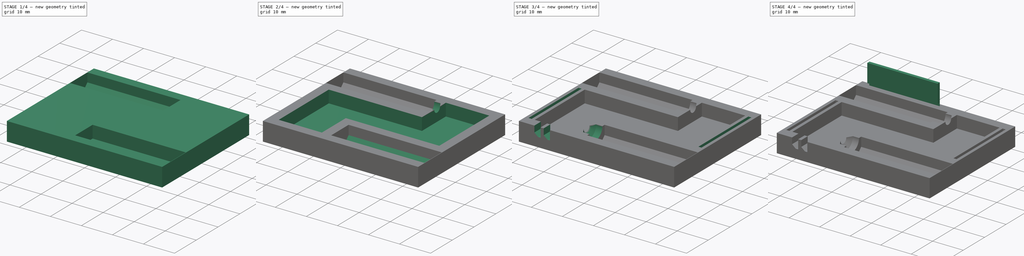
[diagram: build sequence overview — one tinted view per stage of 4, left to right]
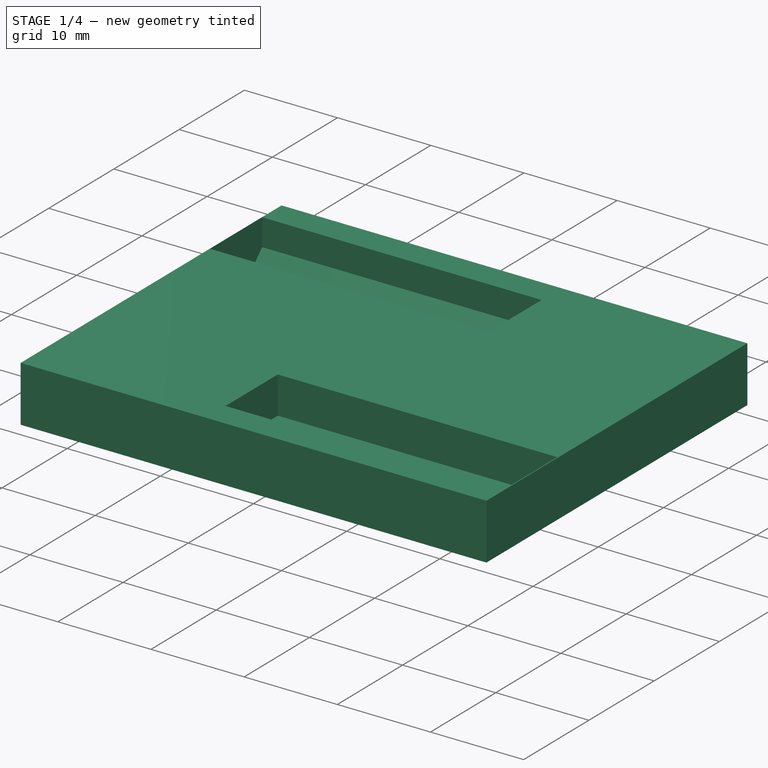
[diagram: stage 1 of 4 — iso view after this stage's code; geometry added in this stage tinted green]
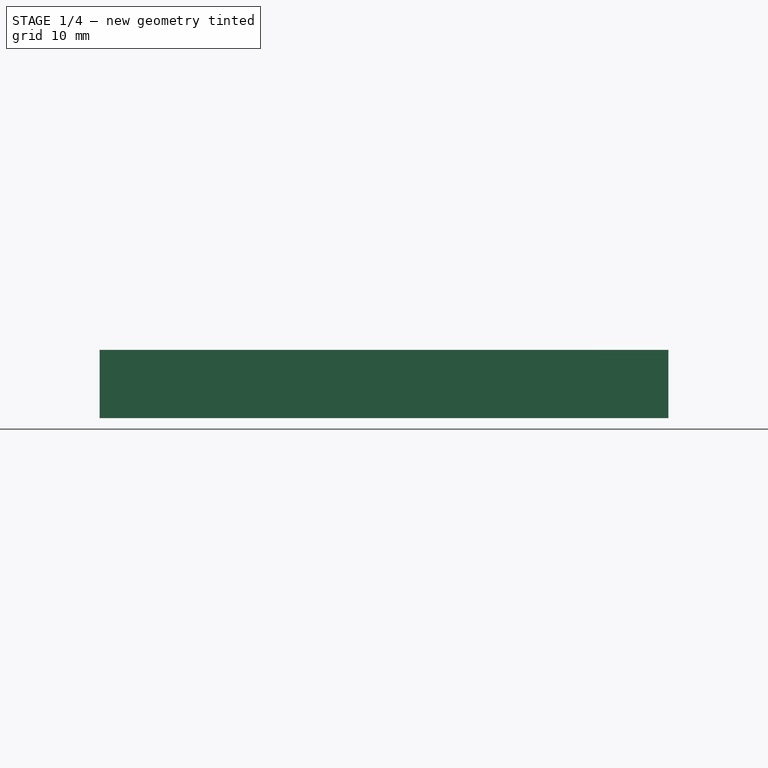
[diagram: stage 1 of 4 — front view after this stage's code; geometry added in this stage tinted green]
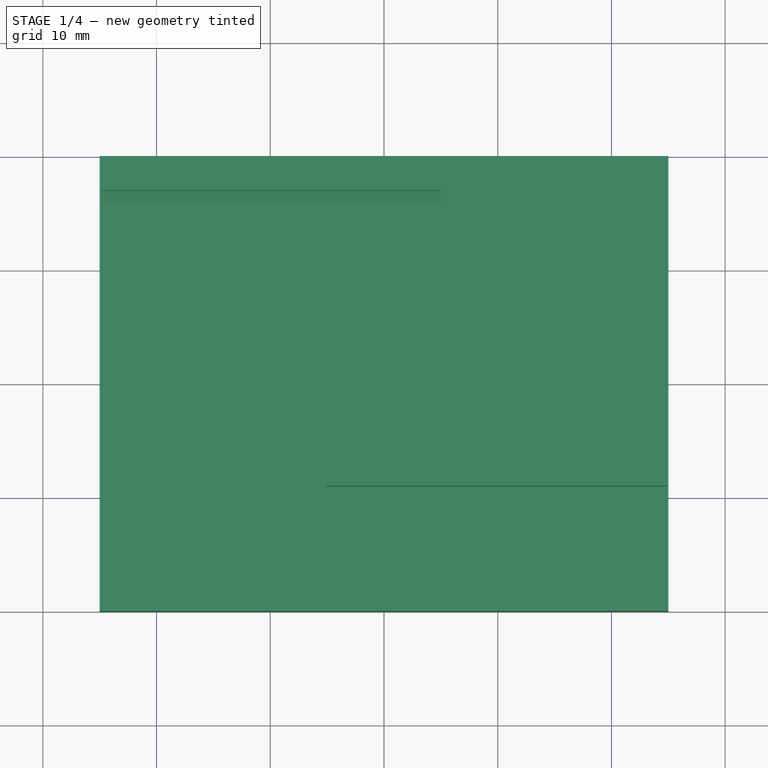
[diagram: stage 1 of 4 — top view after this stage's code; geometry added in this stage tinted green]
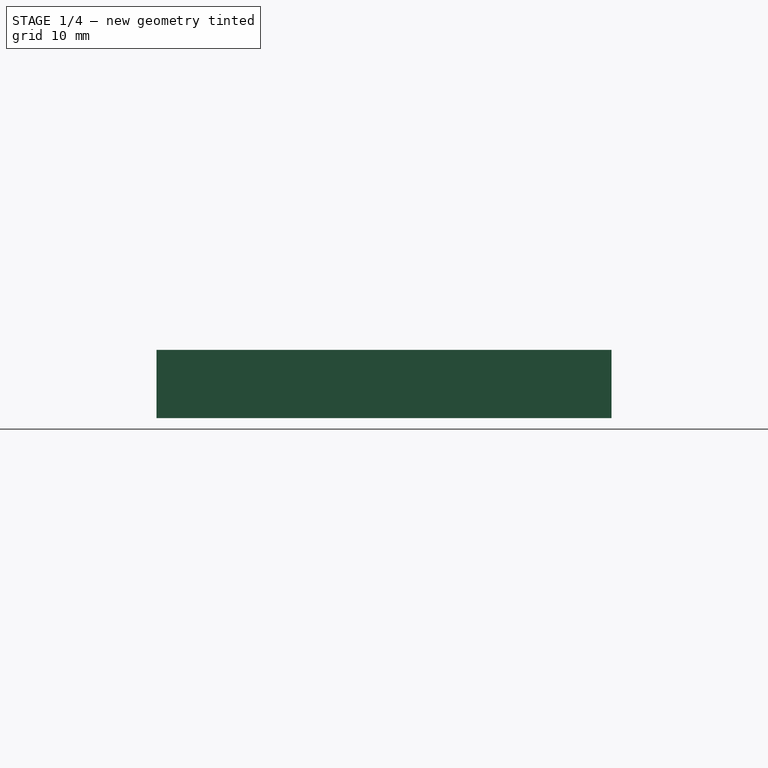
[diagram: stage 1 of 4 — right view after this stage's code; geometry added in this stage tinted green]
FCSTD DOCUMENT  (FreeCAD 0.19R)
Label: connector_socket
License: All rights reserved
LicenseURL: http://en.wikipedia.org/wiki/All_rights_reserved
objects: Sketcher::SketchObject×10, PartDesign::Pocket×6, PartDesign::Chamfer×3, PartDesign::Pad×2, PartDesign::Hole×2, PartDesign::Body×1
note: 37 computed .brp shape members not serialized (recipe doc carries the construction recipe); baked Part::Feature solids carry a one-line shape summary decoded from their .brp

FEATURE [Sketcher::SketchObject] Sketch  label="base"
  FullyConstrained = true
  MapMode = 5
  Support = -> [XY_Plane]
  sketch-geometry (4):
    g0: LineSegment StartX=-25 StartY=20 StartZ=0 EndX=25 EndY=20 EndZ=0
    g1: LineSegment StartX=25 StartY=20 StartZ=0 EndX=25 EndY=-20 EndZ=0
    g2: LineSegment StartX=25 StartY=-20 StartZ=0 EndX=-25 EndY=-20 EndZ=0
    g3: LineSegment StartX=-25 StartY=-20 StartZ=0 EndX=-25 EndY=20 EndZ=0
  constraints (12):
    c: Coincident(g0,g1)
    c: Coincident(g1,g2)
    c: Coincident(g2,g3)
    c: Coincident(g3,g0)
    c: Horizontal(g0)
    c: Horizontal(g2)
    c: Vertical(g1)
    c: Vertical(g3)
    c: DistanceY(g3,g3) = 40
    c: DistanceX(g0,g0) = 50
    c: Distance(g-1,g0) = 20
    c: Distance(g-1,g3) = 25
FEATURE [PartDesign::Pad] Pad
  Direction = (1,1,1)
  Length = 6
  Length2 = 100
  Profile = -> Sketch
  Type = 0
FEATURE [Sketcher::SketchObject] Sketch001  label="male_female_pin_holder"
  ExternalGeometry = -> [Pad]
  FullyConstrained = true
  MapMode = 5
  Placement = pos=(0,0,6) rot=(0,0,1;0rad)
  Support = -> [Pad]
  sketch-geometry (8):
    g0: LineSegment StartX=-24.99 StartY=17 StartZ=0 EndX=5.01 EndY=17 EndZ=0
    g1: LineSegment StartX=5.01 StartY=17 StartZ=0 EndX=5.01 EndY=9 EndZ=0
    g2: LineSegment StartX=5.01 StartY=9 StartZ=0 EndX=-24.99 EndY=9 EndZ=0
    g3: LineSegment StartX=-24.99 StartY=9 StartZ=0 EndX=-24.99 EndY=17 EndZ=0
    g4: LineSegment StartX=24.9 StartY=-9 StartZ=0 EndX=-5.1 EndY=-9 EndZ=0
    g5: LineSegment StartX=-5.1 StartY=-9 StartZ=0 EndX=-5.1 EndY=-17 EndZ=0
    g6: LineSegment StartX=-5.1 StartY=-17 StartZ=0 EndX=24.9 EndY=-17 EndZ=0
    g7: LineSegment StartX=24.9 StartY=-17 StartZ=0 EndX=24.9 EndY=-9 EndZ=0
  constraints (24):
    c: Coincident(g0,g1)
    c: Coincident(g1,g2)
    c: Coincident(g2,g3)
    c: Coincident(g3,g0)
    c: Horizontal(g0)
    c: Horizontal(g2)
    c: Vertical(g1)
    c: Vertical(g3)
    c: DistanceX(g0,g0) = 30
    c: DistanceY(g1,g1) = 8
    c: Distance(g-4,g0) = 3
    c: Coincident(g4,g5)
    c: Coincident(g5,g6)
    c: Coincident(g6,g7)
    c: Coincident(g7,g4)
    c: Horizontal(g4)
    c: Horizontal(g6)
    c: Vertical(g5)
    c: Vertical(g7)
    c: DistanceX(g4,g4) = 30
    c: DistanceY(g5,g5) = 8
    c: Distance(g-6,g6) = 3
    c: Distance(g-6,g7) = 0.1
    c: Distance(g-4,g3) = 0.01
FEATURE [PartDesign::Pocket] Pocket
  BaseFeature = -> Pad
  Length = 4
  Length2 = 100
  Profile = -> Sketch001
  Type = 0
FEATURE [PartDesign::Chamfer] Chamfer
  Angle = 42
  Base = -> Pocket [Edge31]
  BaseFeature = -> Pocket
  ChamferType = 0
  FlipDirection = false
  Refine = true
  Size = 1.1
  Size2 = 1
  SupportTransform = false
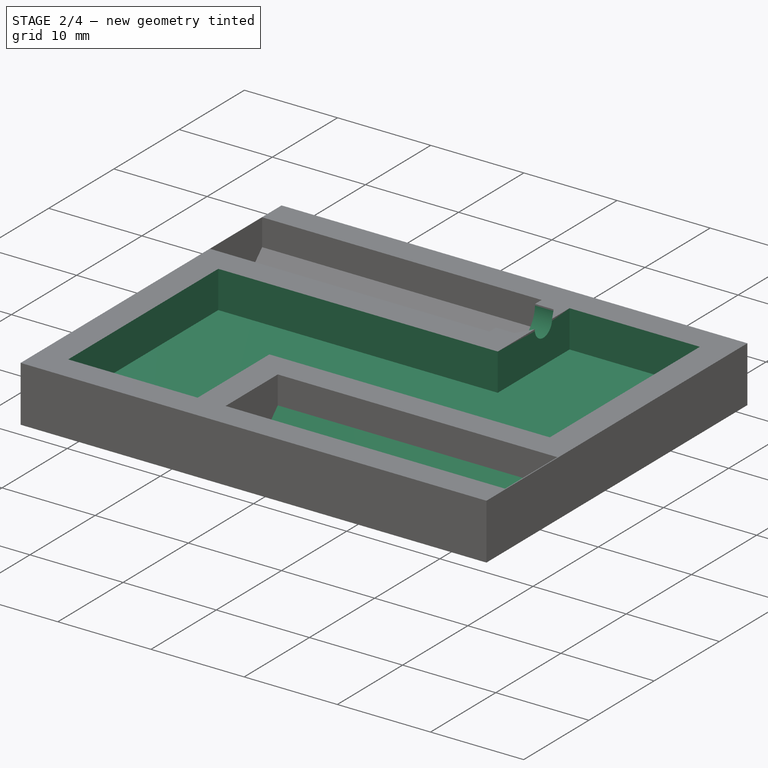
[diagram: stage 2 of 4 — iso view after this stage's code; geometry added in this stage tinted green]
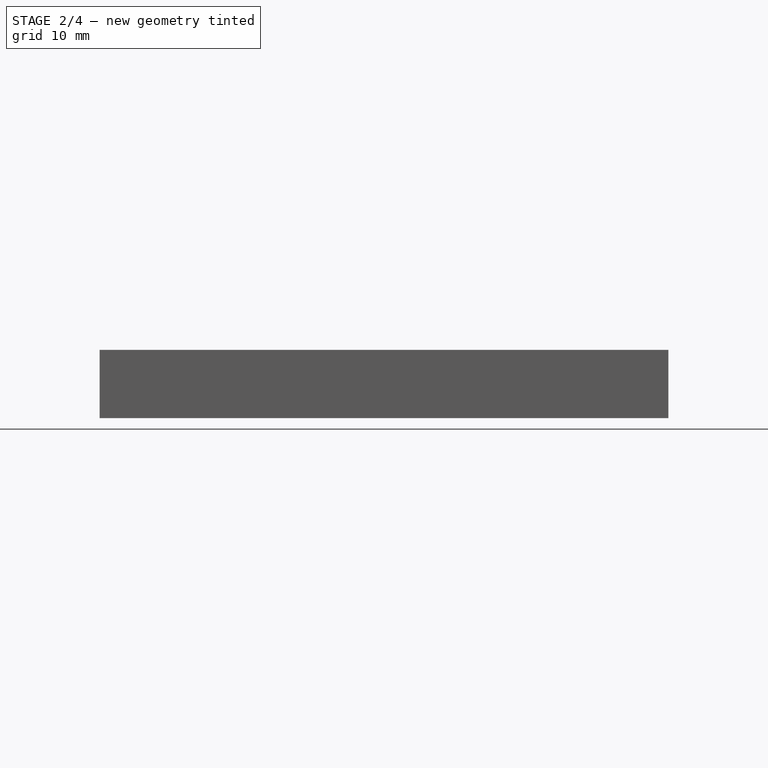
[diagram: stage 2 of 4 — front view after this stage's code; geometry added in this stage tinted green]
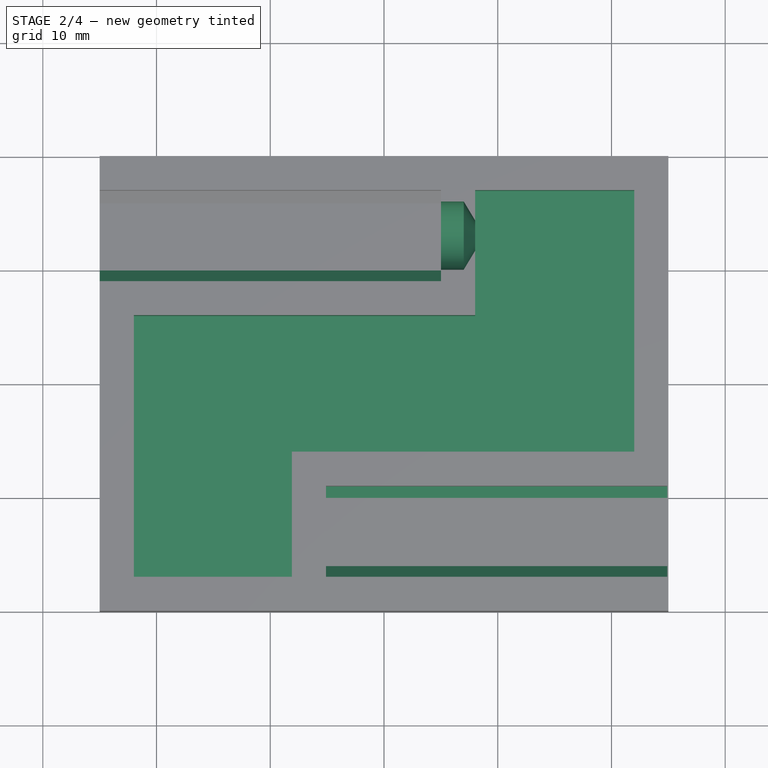
[diagram: stage 2 of 4 — top view after this stage's code; geometry added in this stage tinted green]
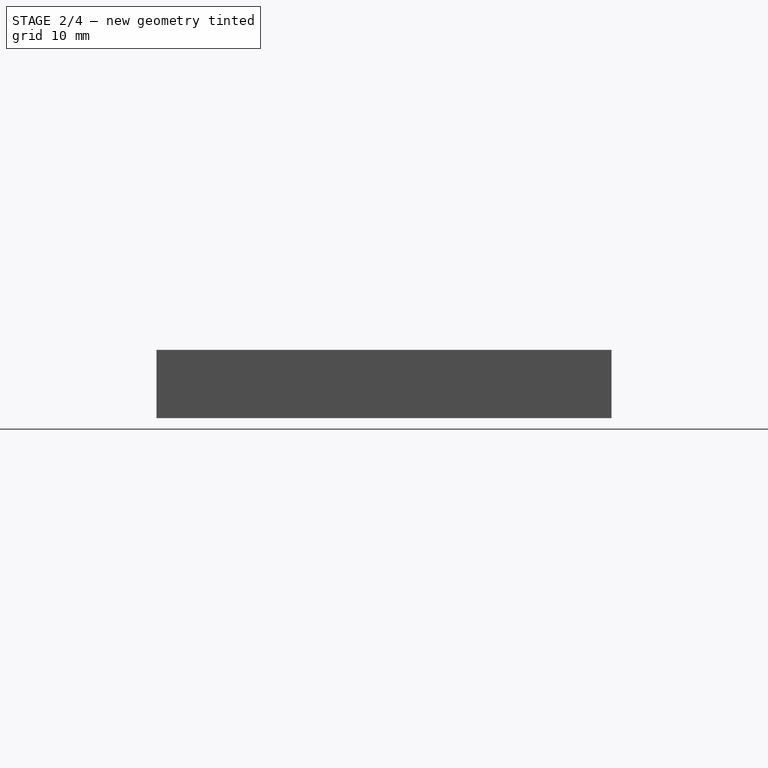
[diagram: stage 2 of 4 — right view after this stage's code; geometry added in this stage tinted green]
FEATURE [PartDesign::Chamfer] Chamfer001
  Angle = 45
  Base = -> Chamfer [Edge23,Edge39,Edge36]
  BaseFeature = -> Chamfer
  ChamferType = 0
  FlipDirection = false
  Size = 1
  Size2 = 1
  SupportTransform = false
FEATURE [Sketcher::SketchObject] Sketch002  label="wire_bed"
  ExternalGeometry = -> [Chamfer001]
  FullyConstrained = true
  MapMode = 5
  Placement = pos=(0,0,6) rot=(0,0,1;0rad)
  Support = -> [Chamfer001]
  sketch-geometry (8):
    g0: LineSegment StartX=8.01 StartY=17 StartZ=0 EndX=8.01 EndY=6 EndZ=0
    g1: LineSegment StartX=8.01 StartY=6 StartZ=0 EndX=-21.99 EndY=6 EndZ=0
    g2: LineSegment StartX=-21.99 StartY=6 StartZ=0 EndX=-21.99 EndY=-17 EndZ=0
    g3: LineSegment StartX=-21.99 StartY=-17 StartZ=0 EndX=-8.1 EndY=-17 EndZ=0
    g4: LineSegment StartX=-8.1 StartY=-17 StartZ=0 EndX=-8.1 EndY=-6 EndZ=0
    g5: LineSegment StartX=-8.1 StartY=-6 StartZ=0 EndX=22 EndY=-6 EndZ=0
    g6: LineSegment StartX=22 StartY=-6 StartZ=0 EndX=22 EndY=17 EndZ=0
    g7: LineSegment StartX=22 StartY=17 StartZ=0 EndX=8.01 EndY=17 EndZ=0
  constraints (24):
    c: Vertical(g0)
    c: Coincident(g0,g1)
    c: Horizontal(g1)
    c: Coincident(g1,g2)
    c: Vertical(g2)
    c: Coincident(g2,g3)
    c: Coincident(g3,g4)
    c: Coincident(g4,g5)
    c: Horizontal(g5)
    c: Coincident(g5,g6)
    c: Coincident(g6,g7)
    c: Coincident(g7,g0)
    c: Distance(g-12,g7) = 3
    c: Parallel(g7,g-5)
    c: Distance(g-4,g0) = 3
    c: Distance(g-6,g1) = 3
    c: Distance(g-6,g2) = 3
    c: Parallel(g3,g-8)
    c: Distance(g-8,g3) = 3
    c: Parallel(g4,g-9)
    c: Distance(g-11,g4) = 3
    c: Distance(g-11,g5) = 3
    c: Parallel(g6,g-12)
    c: Distance(g-12,g6) = 3
FEATURE [PartDesign::Pocket] Pocket001
  BaseFeature = -> Chamfer001
  Length = 4
  Length2 = 100
  Profile = -> Sketch002
  Type = 0
FEATURE [Sketcher::SketchObject] Sketch003  label="header_hole1"
  ExternalGeometry = -> [Pocket001]
  FullyConstrained = true
  MapMode = 5
  Placement = pos=(5.01,0,0) rot=(0.57735,-0.57735,-0.57735;2.0944rad)
  Support = -> [Pocket001]
  sketch-geometry (1):
    g0: Circle CenterX=-13 CenterY=6 CenterZ=0 NormalX=0 NormalY=0 NormalZ=1 AngleXU=0 Radius=3
  constraints (4):
    c: PointOnObject(g0,g-3)
    c: Radius(g0) = 3
    c: Distance(g0,g-5) = 4
    c: Distance(g0,g-4) = 4
FEATURE [PartDesign::Hole] Hole
  BaseFeature = -> Pocket001
  Depth = 2
  DepthType = 0
  Diameter = 6
  DrillForDepth = false
  DrillPoint = 1
  DrillPointAngle = 118
  HoleCutCountersinkAngle = 90
  HoleCutCustomValues = false
  HoleCutDepth = 0
  HoleCutDiameter = 6.1
  HoleCutType = 0
  ModelActualThread = false
  Profile = -> Sketch003
  Tapered = false
  TaperedAngle = 90
  ThreadAngle = 0
  ThreadClass = 0
  ThreadCutOffInner = 0
  ThreadCutOffOuter = 0
  ThreadDirection = 0
  ThreadFit = 0
  ThreadPitch = 0
  ThreadSize = 0
  ThreadType = 0
  Threaded = false
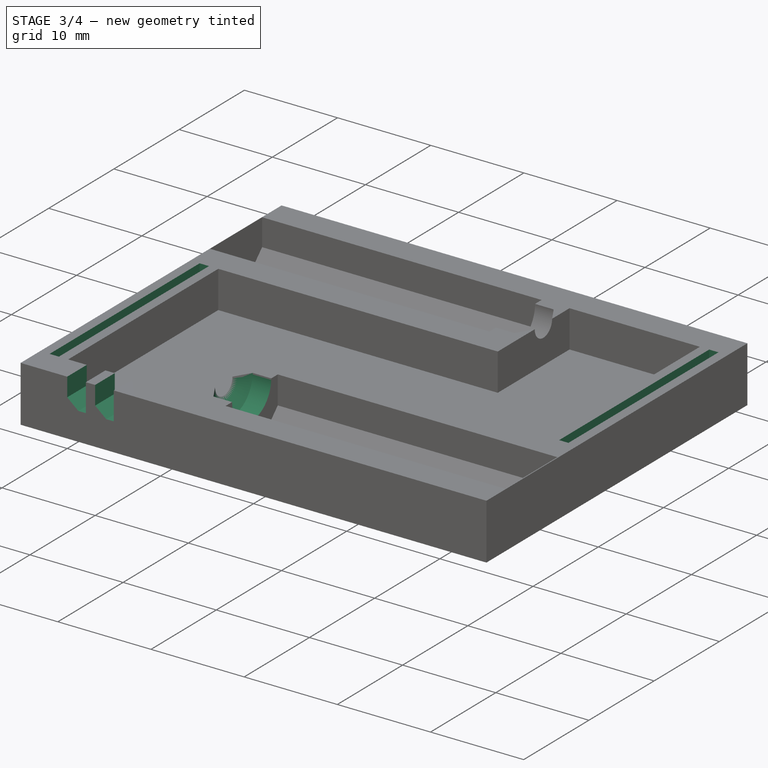
[diagram: stage 3 of 4 — iso view after this stage's code; geometry added in this stage tinted green]
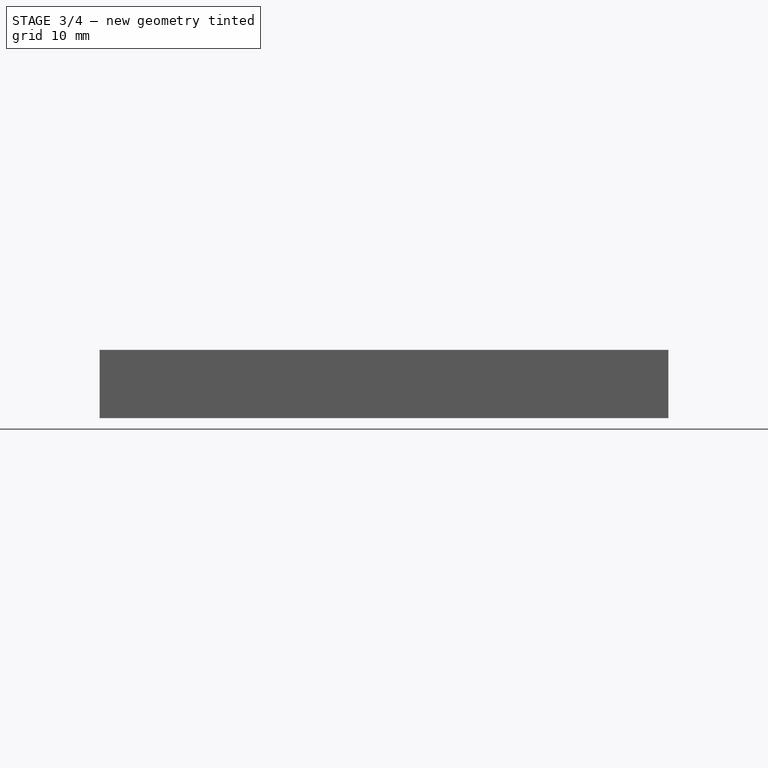
[diagram: stage 3 of 4 — front view after this stage's code; geometry added in this stage tinted green]
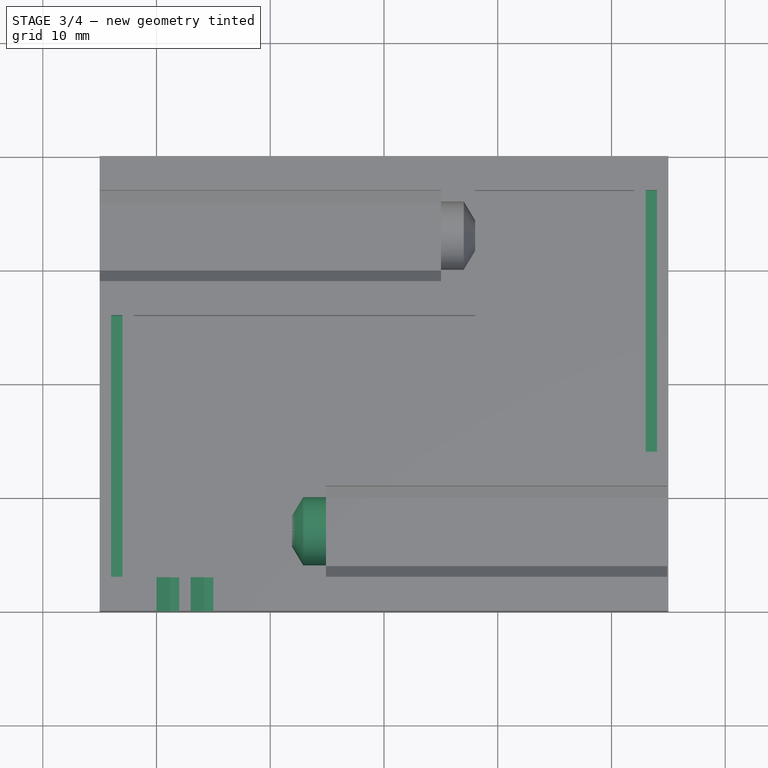
[diagram: stage 3 of 4 — top view after this stage's code; geometry added in this stage tinted green]
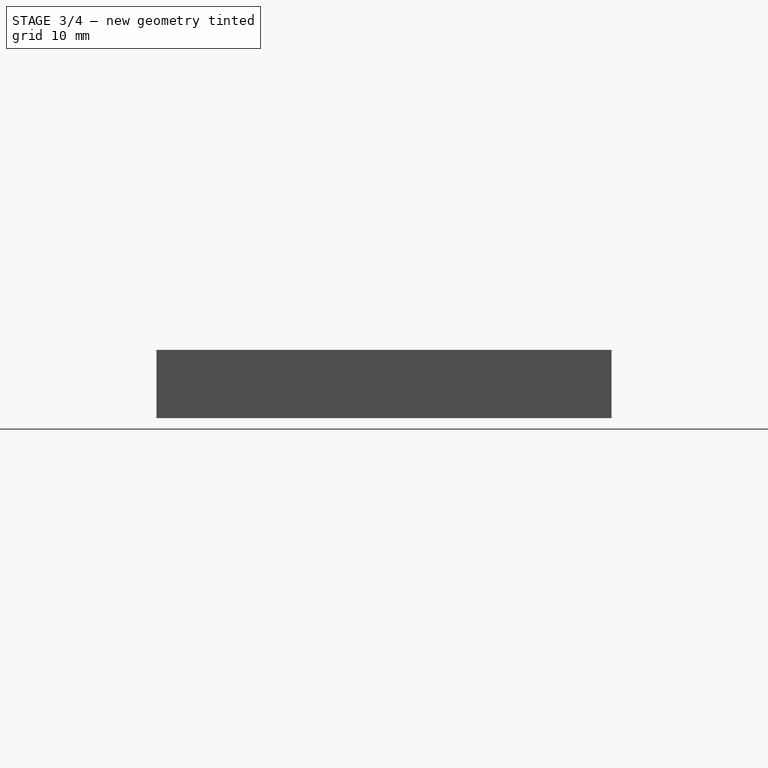
[diagram: stage 3 of 4 — right view after this stage's code; geometry added in this stage tinted green]
FEATURE [Sketcher::SketchObject] Sketch004  label="headerhole2"
  ExternalGeometry = -> [Hole]
  FullyConstrained = true
  MapMode = 5
  Placement = pos=(-5.1,0,0) rot=(0.57735,0.57735,0.57735;2.0944rad)
  Support = -> [Hole]
  sketch-geometry (1):
    g0: Circle CenterX=-13 CenterY=6 CenterZ=0 NormalX=0 NormalY=0 NormalZ=1 AngleXU=0 Radius=3
  constraints (3):
    c: PointOnObject(g0,g-3)
    c: Radius(g0) = 3
    c: Distance(g0,g-9) = 4
FEATURE [PartDesign::Hole] Hole001
  BaseFeature = -> Hole
  Depth = 2
  DepthType = 0
  Diameter = 6
  DrillForDepth = false
  DrillPoint = 1
  DrillPointAngle = 118
  HoleCutCountersinkAngle = 90
  HoleCutCustomValues = false
  HoleCutDepth = 0
  HoleCutDiameter = 6.1
  HoleCutType = 0
  ModelActualThread = false
  Profile = -> Sketch004
  Tapered = false
  TaperedAngle = 90
  ThreadAngle = 0
  ThreadClass = 0
  ThreadCutOffInner = 0
  ThreadCutOffOuter = 0
  ThreadDirection = 0
  ThreadFit = 0
  ThreadPitch = 0
  ThreadSize = 0
  ThreadType = 0
  Threaded = false
FEATURE [Sketcher::SketchObject] Sketch005
  ExternalGeometry = -> [Hole001]
  FullyConstrained = true
  MapMode = 5
  Placement = pos=(0,0,6) rot=(0,0,1;0rad)
  Support = -> [Hole001]
  sketch-geometry (8):
    g0: LineSegment StartX=-20 StartY=-17 StartZ=0 EndX=-18 EndY=-17 EndZ=0
    g1: LineSegment StartX=-18 StartY=-17 StartZ=0 EndX=-18 EndY=-20 EndZ=0
    g2: LineSegment StartX=-18 StartY=-20 StartZ=0 EndX=-20 EndY=-20 EndZ=0
    g3: LineSegment StartX=-20 StartY=-20 StartZ=0 EndX=-20 EndY=-17 EndZ=0
    g4: LineSegment StartX=-17 StartY=-17 StartZ=0 EndX=-15 EndY=-17 EndZ=0
    g5: LineSegment StartX=-15 StartY=-17 StartZ=0 EndX=-15 EndY=-20 EndZ=0
    g6: LineSegment StartX=-15 StartY=-20 StartZ=0 EndX=-17 EndY=-20 EndZ=0
    g7: LineSegment StartX=-17 StartY=-20 StartZ=0 EndX=-17 EndY=-17 EndZ=0
  constraints (24):
    c: Coincident(g0,g1)
    c: Coincident(g1,g2)
    c: Coincident(g2,g3)
    c: Coincident(g3,g0)
    c: Horizontal(g0)
    c: Horizontal(g2)
    c: Vertical(g1)
    c: Vertical(g3)
    c: PointOnObject(g0,g-4)
    c: PointOnObject(g1,g-5)
    c: Coincident(g4,g5)
    c: Coincident(g5,g6)
    c: Coincident(g6,g7)
    c: Coincident(g7,g4)
    c: Horizontal(g4)
    c: Horizontal(g6)
    c: Vertical(g5)
    c: Vertical(g7)
    c: PointOnObject(g4,g-4)
    c: PointOnObject(g5,g-5)
    c: DistanceX(g0,g0) = 2
    c: DistanceX(g4,g4) = 2
    c: Distance(g-5,g3) = 5
    c: Distance(g0,g7) = 3
FEATURE [PartDesign::Pocket] Pocket002
  BaseFeature = -> Hole001
  Length = 3
  Length2 = 100
  Profile = -> Sketch005
  Type = 0
FEATURE [PartDesign::Chamfer] Chamfer002
  Angle = 50
  Base = -> Pocket002 [Edge65,Edge117]
  BaseFeature = -> Pocket002
  ChamferType = 2
  FlipDirection = false
  Size = 1
  Size2 = 1
  SupportTransform = false
FEATURE [Sketcher::SketchObject] Sketch006  label="clamping_hole"
  ExternalGeometry = -> [Chamfer002]
  FullyConstrained = true
  MapMode = 5
  Placement = pos=(0,0,6) rot=(0,0,1;0rad)
  Support = -> [Chamfer002]
  sketch-geometry (8):
    g0: LineSegment StartX=-23.99 StartY=6 StartZ=0 EndX=-22.99 EndY=6 EndZ=0
    g1: LineSegment StartX=-22.99 StartY=6 StartZ=0 EndX=-22.99 EndY=-17 EndZ=0
    g2: LineSegment StartX=-22.99 StartY=-17 StartZ=0 EndX=-23.99 EndY=-17 EndZ=0
    g3: LineSegment StartX=-23.99 StartY=-17 StartZ=0 EndX=-23.99 EndY=6 EndZ=0
    g4: LineSegment StartX=23 StartY=17 StartZ=0 EndX=24 EndY=17 EndZ=0
    g5: LineSegment StartX=24 StartY=17 StartZ=0 EndX=24 EndY=-6 EndZ=0
    g6: LineSegment StartX=24 StartY=-6 StartZ=0 EndX=23 EndY=-6 EndZ=0
    g7: LineSegment StartX=23 StartY=-6 StartZ=0 EndX=23 EndY=17 EndZ=0
  constraints (24):
    c: Coincident(g0,g1)
    c: Coincident(g1,g2)
    c: Coincident(g2,g3)
    c: Coincident(g3,g0)
    c: Horizontal(g0)
    c: Horizontal(g2)
    c: Vertical(g1)
    c: Vertical(g3)
    c: DistanceX(g0,g0) = 1
    c: DistanceX(g0,g-5) = 1
    c: DistanceY(g3,g3) = 23
    c: Distance(g-13,g0) = 3
    c: Coincident(g4,g5)
    c: Coincident(g5,g6)
    c: Coincident(g6,g7)
    c: Coincident(g7,g4)
    c: Horizontal(g4)
    c: Horizontal(g6)
    c: Vertical(g5)
    c: Vertical(g7)
    c: Distance(g-7,g4) = 3
    c: DistanceX(g4,g4) = 1
    c: Distance(g-7,g5) = 1
    c: DistanceY(g7,g7) = 23
FEATURE [PartDesign::Pocket] Pocket003
  BaseFeature = -> Chamfer002
  Length = 3
  Length2 = 100
  Profile = -> Sketch006
  Type = 0
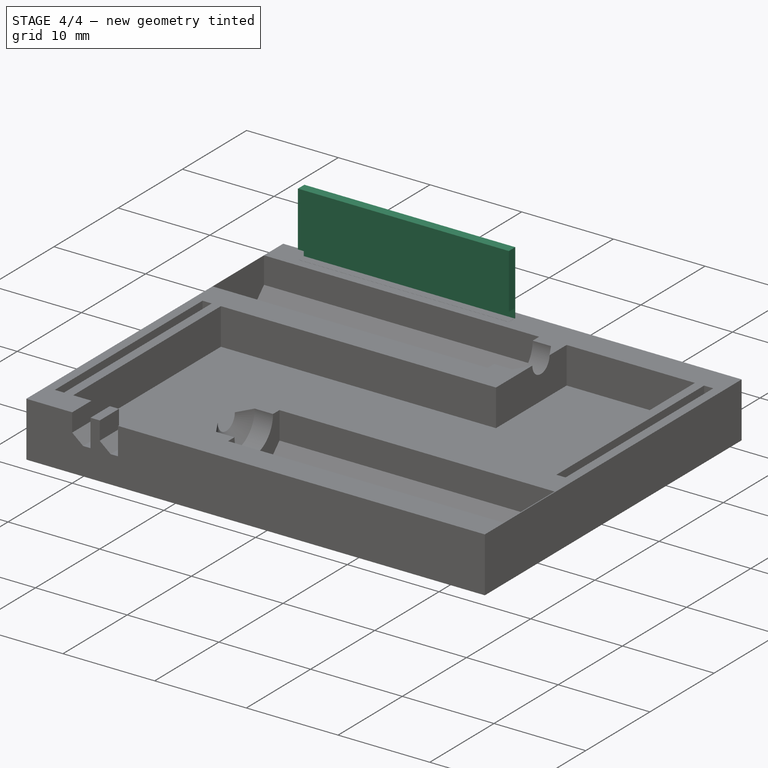
[diagram: stage 4 of 4 — iso view after this stage's code; geometry added in this stage tinted green]
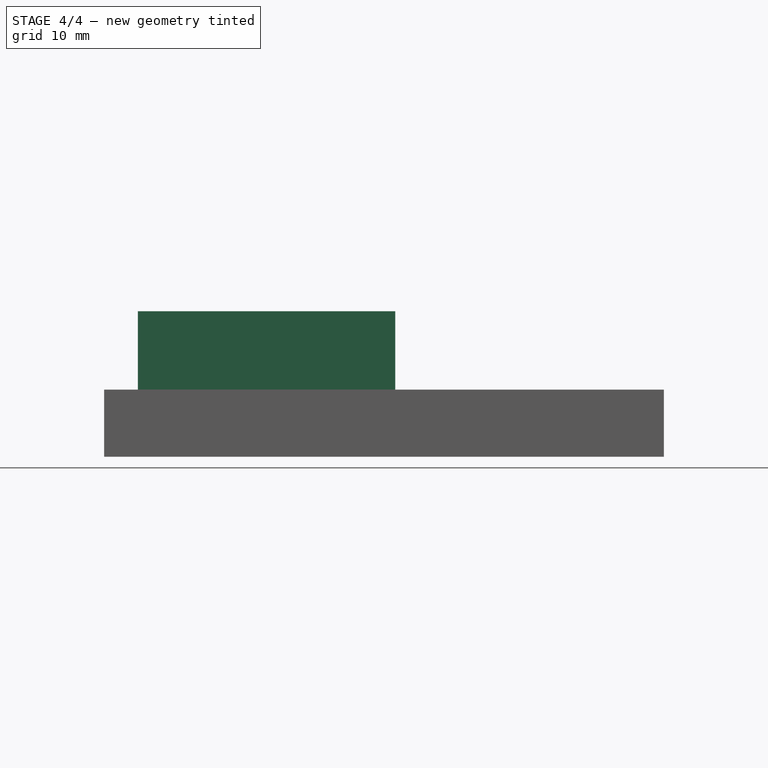
[diagram: stage 4 of 4 — front view after this stage's code; geometry added in this stage tinted green]
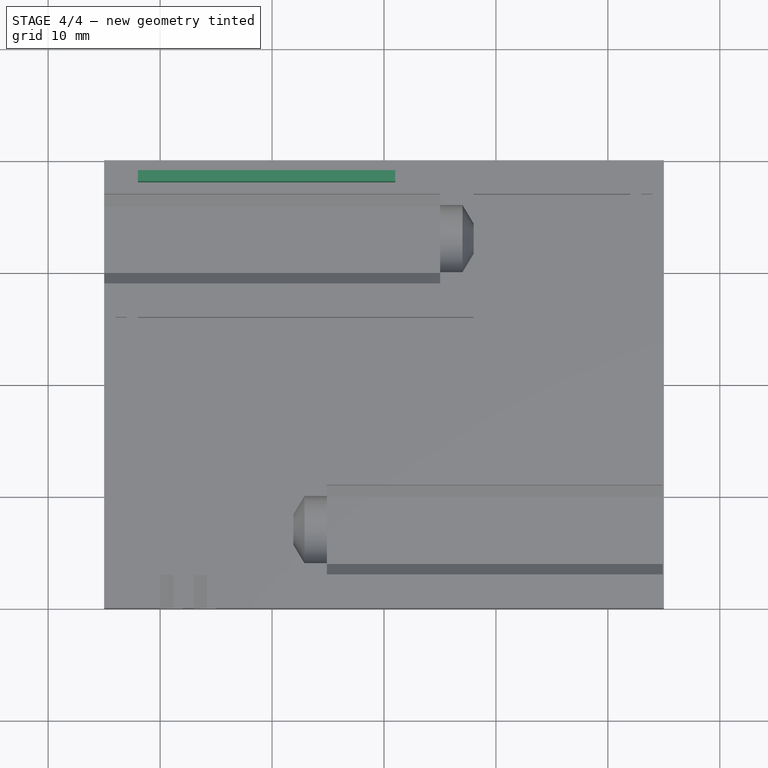
[diagram: stage 4 of 4 — top view after this stage's code; geometry added in this stage tinted green]
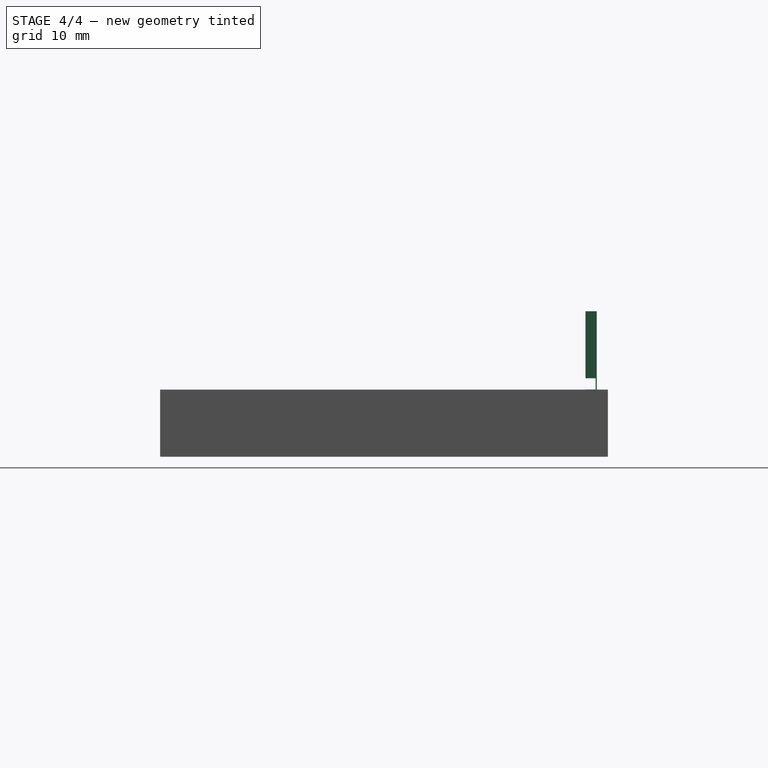
[diagram: stage 4 of 4 — right view after this stage's code; geometry added in this stage tinted green]
FEATURE [Sketcher::SketchObject] Sketch007  label="clamping_wedge"
  ExternalGeometry = -> [Pocket003]
  FullyConstrained = true
  MapMode = 5
  Placement = pos=(0,0,6) rot=(0,0,1;0rad)
  Support = -> [Pocket003]
  sketch-geometry (4):
    g0: LineSegment StartX=-21.99 StartY=19 StartZ=0 EndX=1.01 EndY=19 EndZ=0
    g1: LineSegment StartX=1.01 StartY=19 StartZ=0 EndX=1.01 EndY=18 EndZ=0
    g2: LineSegment StartX=1.01 StartY=18 StartZ=0 EndX=-21.99 EndY=18 EndZ=0
    g3: LineSegment StartX=-21.99 StartY=18 StartZ=0 EndX=-21.99 EndY=19 EndZ=0
  constraints (12):
    c: Coincident(g0,g1)
    c: Coincident(g1,g2)
    c: Coincident(g2,g3)
    c: Coincident(g3,g0)
    c: Horizontal(g0)
    c: Horizontal(g2)
    c: Vertical(g1)
    c: Vertical(g3)
    c: DistanceX(g0,g0) = 23
    c: DistanceY(g3,g3) = 1
    c: Distance(g-5,g0) = 1
    c: Distance(g-3,g3) = 3
FEATURE [PartDesign::Pad] Pad001
  BaseFeature = -> Pocket003
  Direction = (1,1,1)
  Length = 7
  Length2 = 100
  Profile = -> Sketch007
  Type = 0
FEATURE [Sketcher::SketchObject] Sketch008
  ExternalGeometry = -> [Pad001]
  FullyConstrained = true
  MapMode = 5
  Placement = pos=(0,18,0) rot=(1,0,0;1.5708rad)
  Support = -> [Pad001]
  sketch-geometry (4):
    g0: LineSegment StartX=-21.99 StartY=7.01 StartZ=0 EndX=1.01 EndY=7.01 EndZ=0
    g1: LineSegment StartX=1.01 StartY=7.01 StartZ=0 EndX=1.01 EndY=6.01 EndZ=0
    g2: LineSegment StartX=1.01 StartY=6.01 StartZ=0 EndX=-21.99 EndY=6.01 EndZ=0
    g3: LineSegment StartX=-21.99 StartY=6.01 StartZ=0 EndX=-21.99 EndY=7.01 EndZ=0
  constraints (12):
    c: Coincident(g0,g1)
    c: Coincident(g1,g2)
    c: Coincident(g2,g3)
    c: Coincident(g3,g0)
    c: Horizontal(g0)
    c: Horizontal(g2)
    c: Vertical(g1)
    c: Vertical(g3)
    c: PointOnObject(g0,g-3)
    c: PointOnObject(g1,g-5)
    c: DistanceY(g3,g3) = 1
    c: Distance(g-3,g2) = 0.01
FEATURE [PartDesign::Pocket] Pocket004
  BaseFeature = -> Pad001
  Length = 0.9
  Length2 = 100
  Profile = -> Sketch008
  Type = 0
FEATURE [Sketcher::SketchObject] Sketch009
  FullyConstrained = false
  MapMode = 5
  Placement = pos=(0,0,-6) rot=(1,0,0;3.14159rad)
  sketch-geometry (8):
    g0: LineSegment StartX=23 StartY=5.99 StartZ=0 EndX=24 EndY=5.99 EndZ=0
    g1: LineSegment StartX=24 StartY=5.99 StartZ=0 EndX=24 EndY=-17.01 EndZ=0
    g2: LineSegment StartX=24 StartY=-17.01 StartZ=0 EndX=23 EndY=-17.01 EndZ=0
    g3: LineSegment StartX=23 StartY=-17.01 StartZ=0 EndX=23 EndY=5.99 EndZ=0
    g4: LineSegment StartX=-24 StartY=17.01 StartZ=0 EndX=-23 EndY=17.01 EndZ=0
    g5: LineSegment StartX=-23 StartY=17.01 StartZ=0 EndX=-23 EndY=-5.99 EndZ=0
    g6: LineSegment StartX=-23 StartY=-5.99 StartZ=0 EndX=-24 EndY=-5.99 EndZ=0
    g7: LineSegment StartX=-24 StartY=-5.99 StartZ=0 EndX=-24 EndY=17.01 EndZ=0
  constraints (20):
    c: Coincident(g0,g1)
    c: Coincident(g1,g2)
    c: Coincident(g2,g3)
    c: Coincident(g3,g0)
    c: Horizontal(g0)
    c: Horizontal(g2)
    c: Vertical(g1)
    c: Vertical(g3)
    c: DistanceX(g2,g2) = 1
    c: DistanceY(g3,g3) = 23
    c: Coincident(g4,g5)
    c: Coincident(g5,g6)
    c: Coincident(g6,g7)
    c: Coincident(g7,g4)
    c: Horizontal(g4)
    c: Horizontal(g6)
    c: Vertical(g5)
    c: Vertical(g7)
    c: DistanceX(g4,g4) = 1
    c: DistanceY(g5,g5) = 23
FEATURE [PartDesign::Pocket] Pocket005
  BaseFeature = -> Pocket004
  Length = 2
  Length2 = 100
  Profile = -> Sketch009
  Type = 0
FEATURE [PartDesign::Body] Body
  Group = -> [Sketch,Pad,Sketch001,Pocket,Chamfer,Chamfer001,Sketch002,Pocket001,Sketch003,Hole,Sketch004,Hole001,Sketch005,Pocket002,Chamfer002,Sketch006,Pocket003,Sketch007,Pad001,Sketch008,Pocket004,Sketch009,Pocket005]
  Origin = -> Origin
  Tip = -> Pocket005
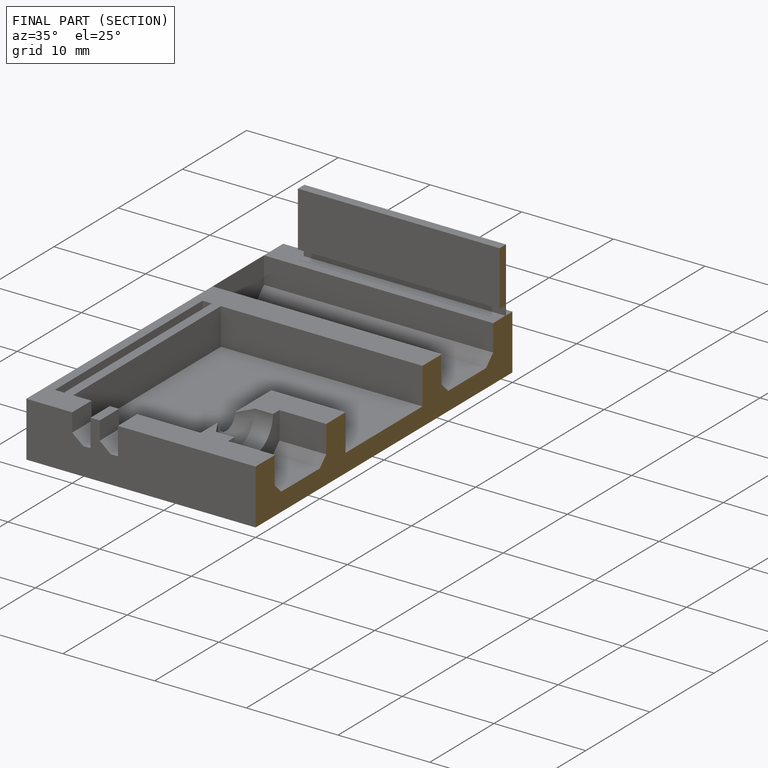
[diagram: finished part — half-section view (interior)]
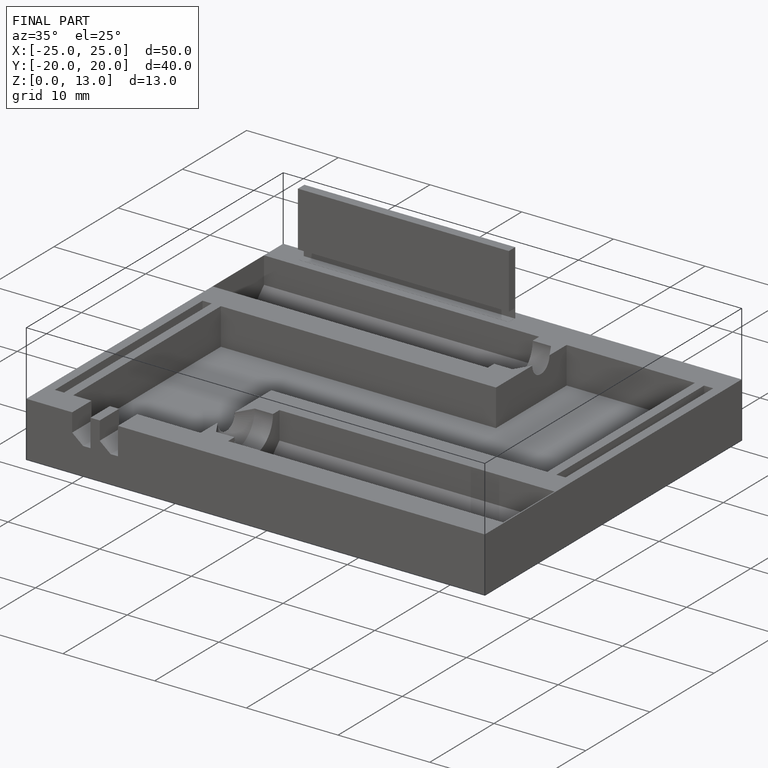
[diagram: finished part — iso view with bounding-box wireframe]
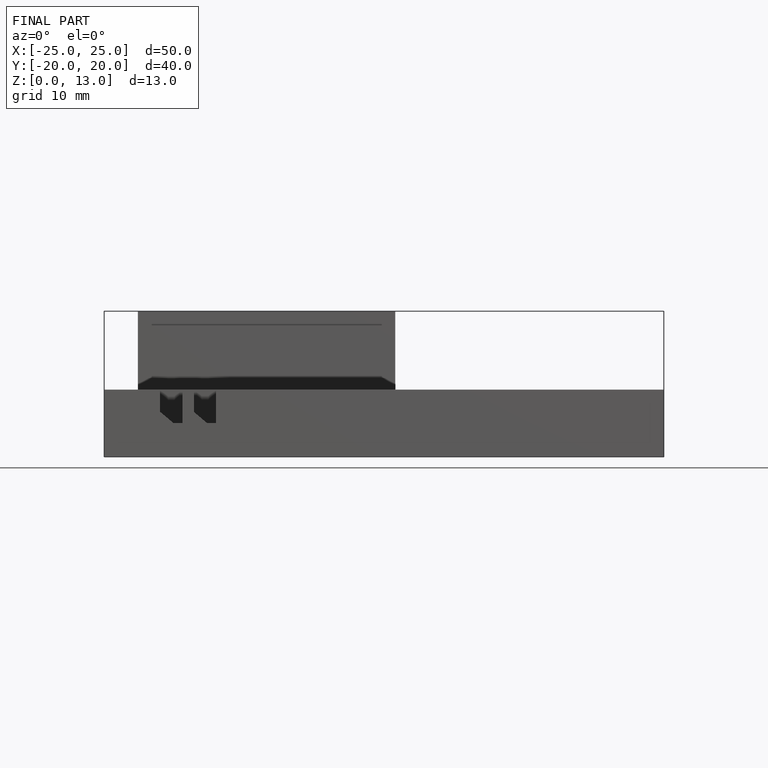
[diagram: finished part — front view with bounding-box wireframe]
